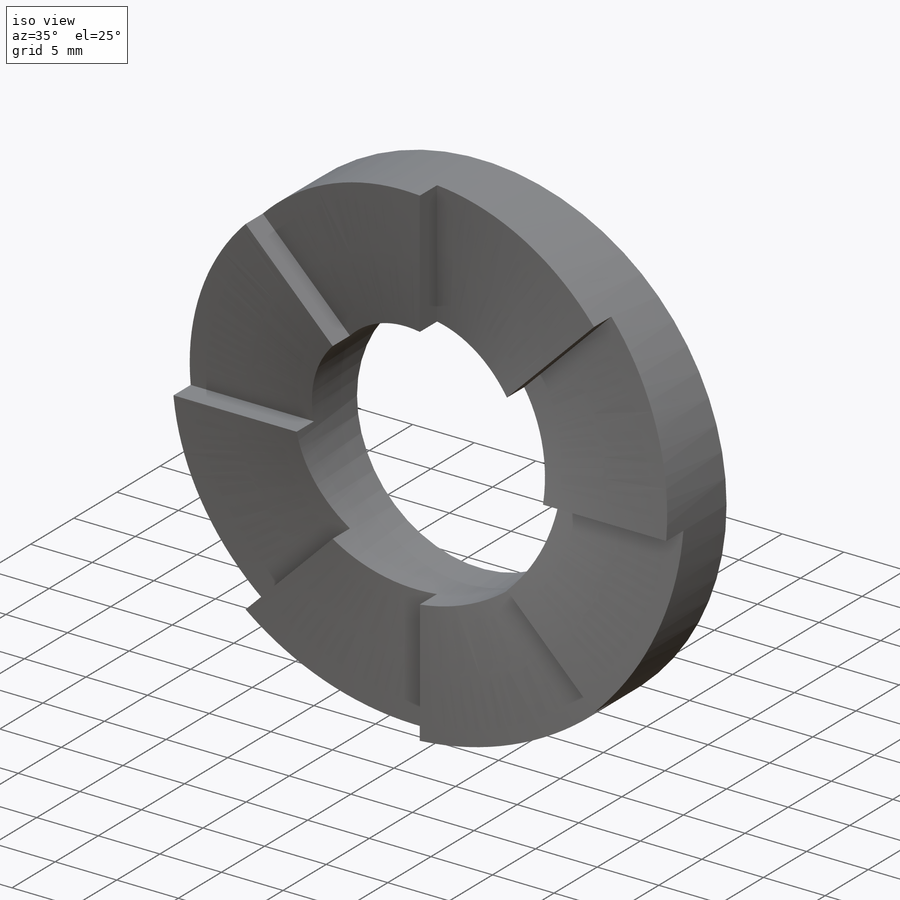
[diagram: iso view]
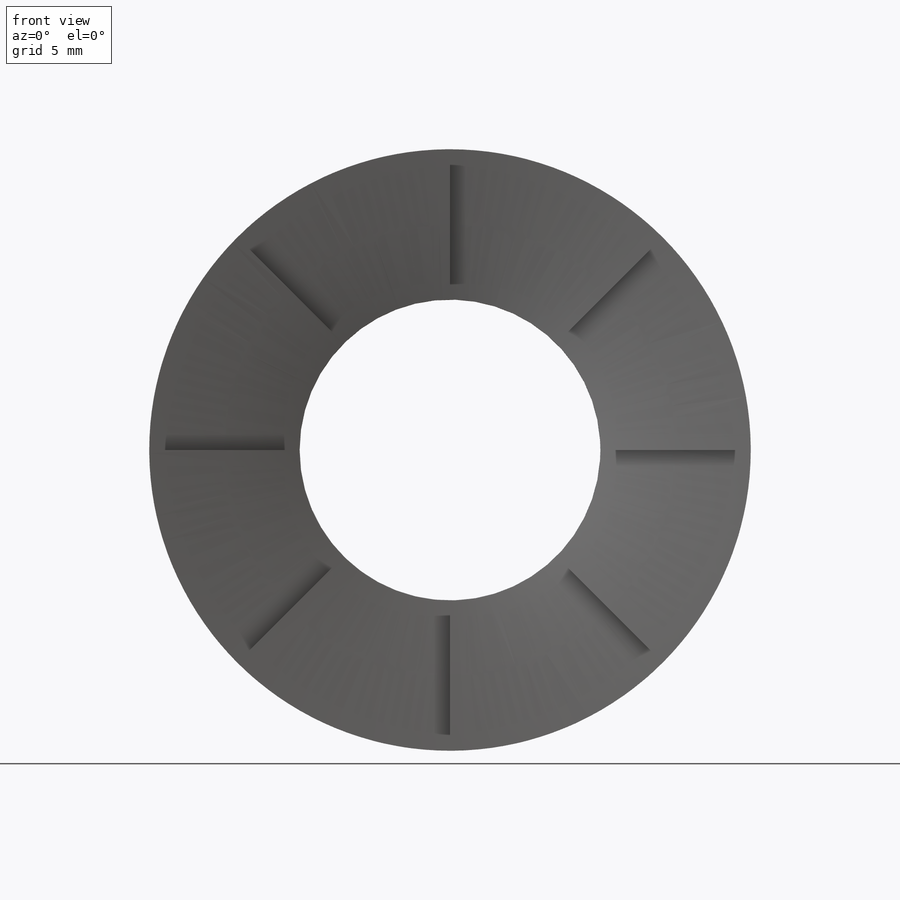
[diagram: front view]
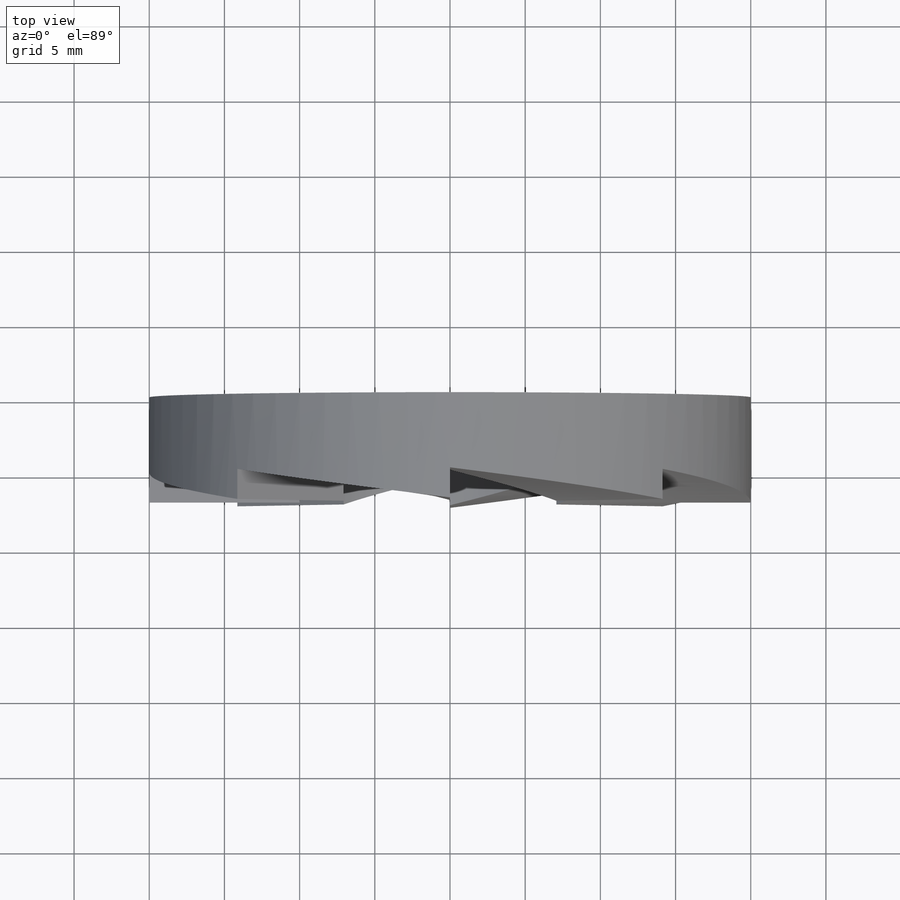
[diagram: top view]
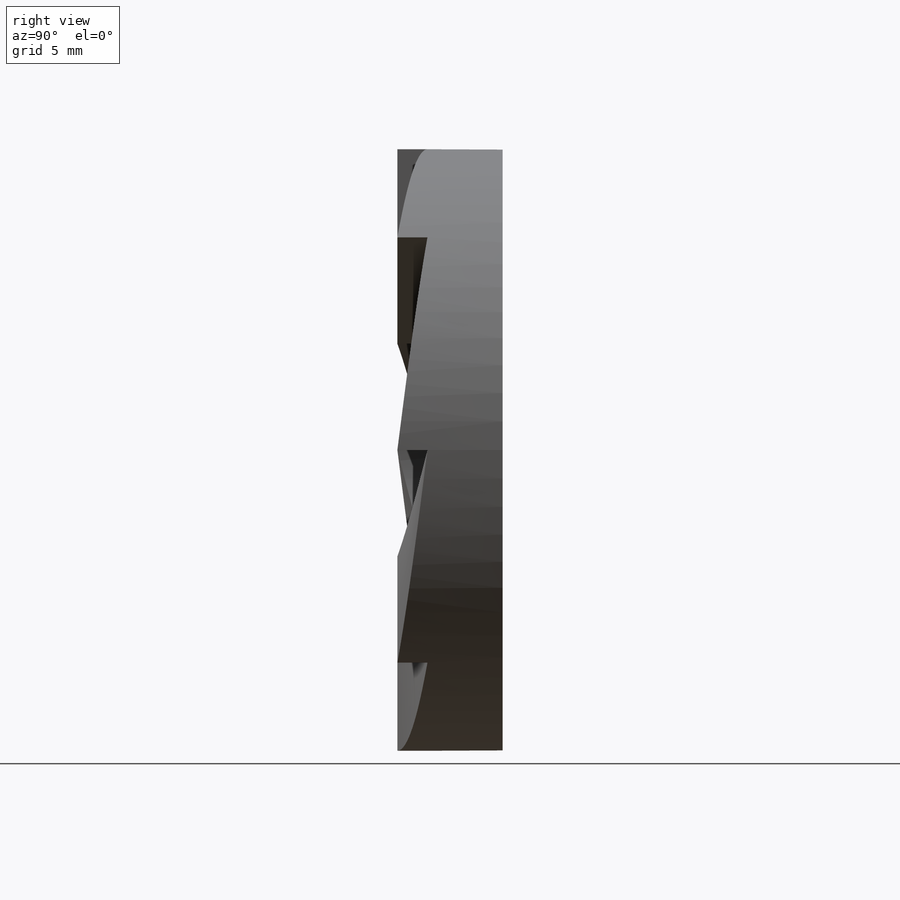
[diagram: right view]
SOLIDWORKS PART (.sldprt)
format: sldprt  version: not decoded by parser v0  size: 274,432 bytes
history: native  units: mm
features: plane x3, sketch x3, material x1, extrude x1, helix x1, move_body x1, surface_op x1, pattern_circular x1, boolean_combine x1 (+9 scaffold rows collapsed)
feature tree (22):
  scaffold x9  (default folders/planes/origin — collapsed)
  material  "Material <nicht festgelegt>"
  plane  "Ebene vorne"
  plane  "Ebene oben"
  plane  "Ebene rechts"
  sketch  "Skizze1"  dims[c1.D2=20.0mm c1.D3=40.0mm c1.D1=~39.372168mm c2.D1=45.0deg]
  extrude  "Aufsatz-Linear austragen1"  Depth=10mm
  sketch  "Skizze3"  dims[D1=1.0mm]
  helix  "Spirale/Helix1"  Pitch=2mm
  sketch  "Skizze4"  dims[D1=1.0mm Spirale/Helix2=0.0 D3=2.0mm D4=16.0mm D5=125.0mm D7=0.0deg]
  move_body  "Körper-Verschieben/Kopieren1"
  surface_op  "Oberfläche-Ausformung2"
  pattern_circular  "Kreismuster1"  Count=8 Angle=360deg
  boolean_combine  "Kombinieren3"
decode coverage: 6 of 9 modeling features carry decoded parameters
note: ~ marks probable driven/reference dimensions
note: suppression state not decoded; provenance and decode notes live in map.json
